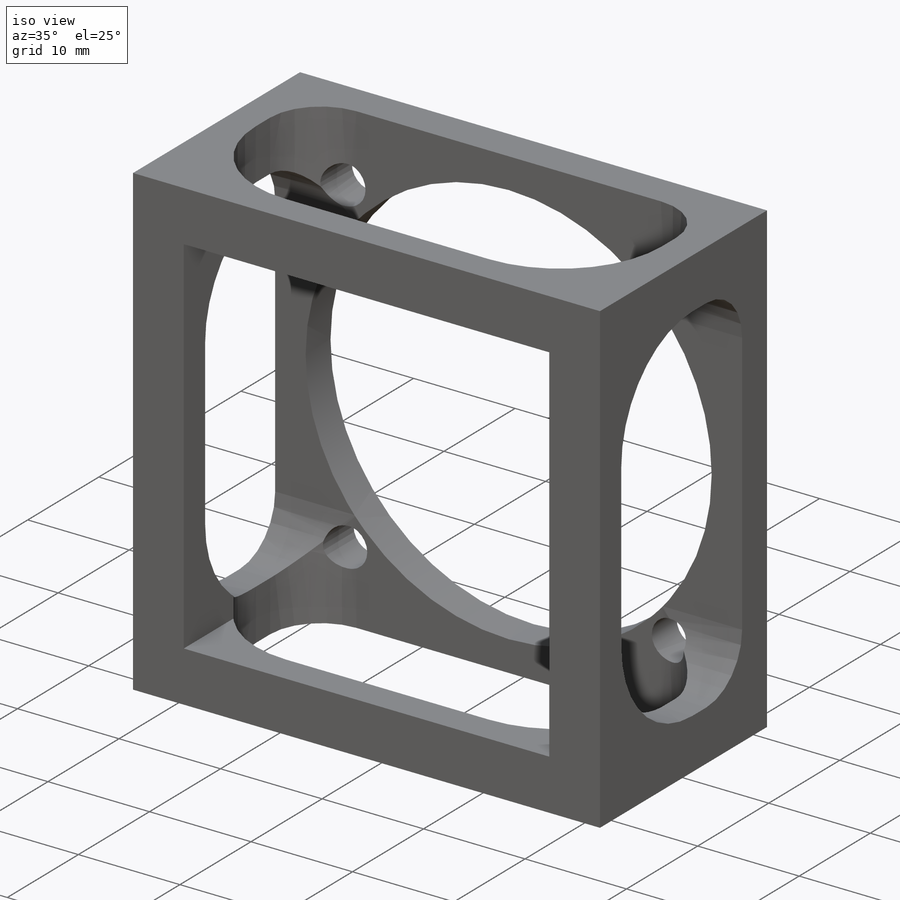
[diagram: iso view]
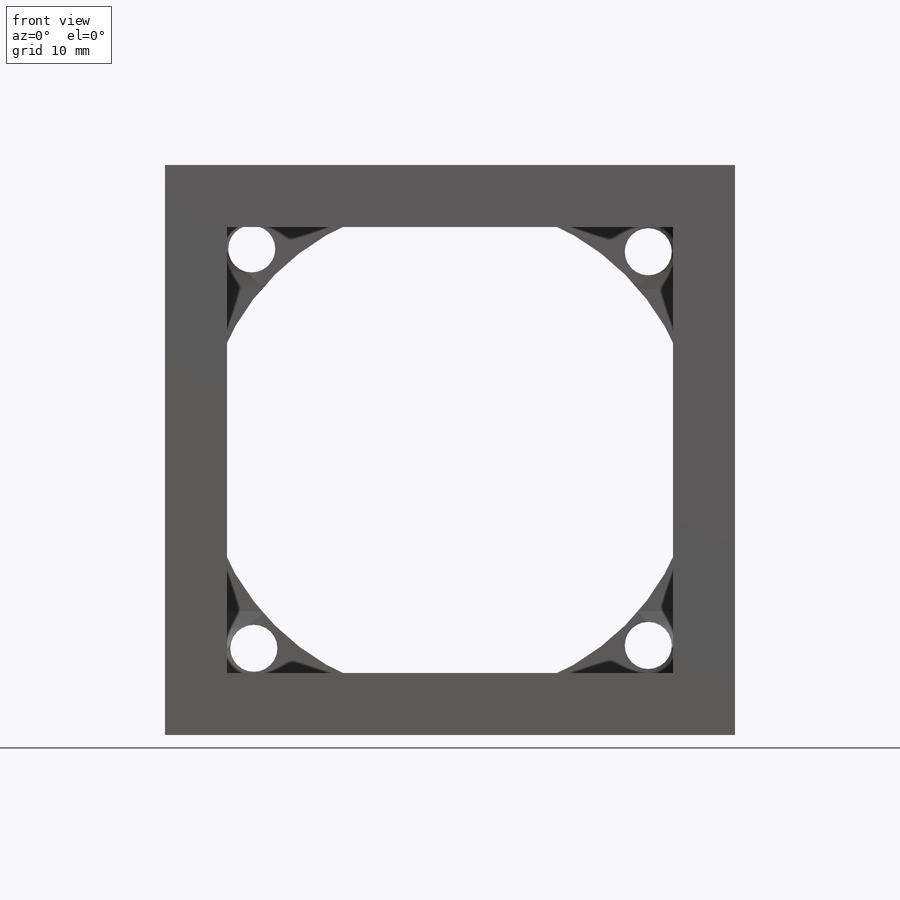
[diagram: front view]
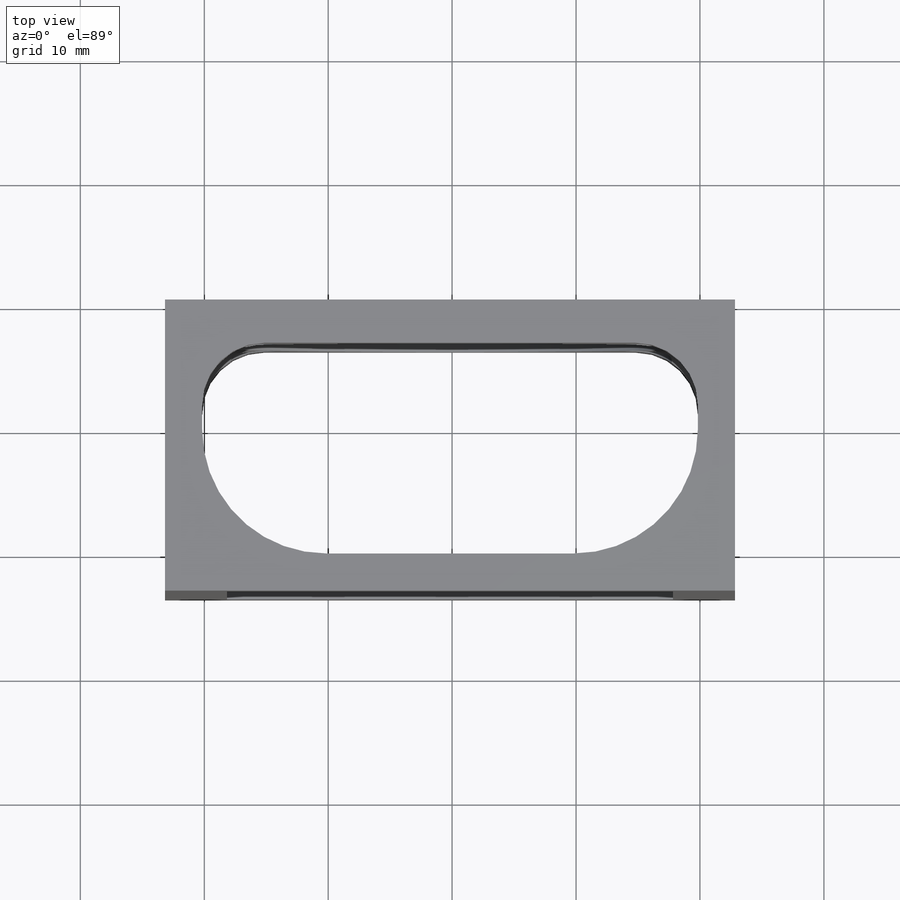
[diagram: top view]
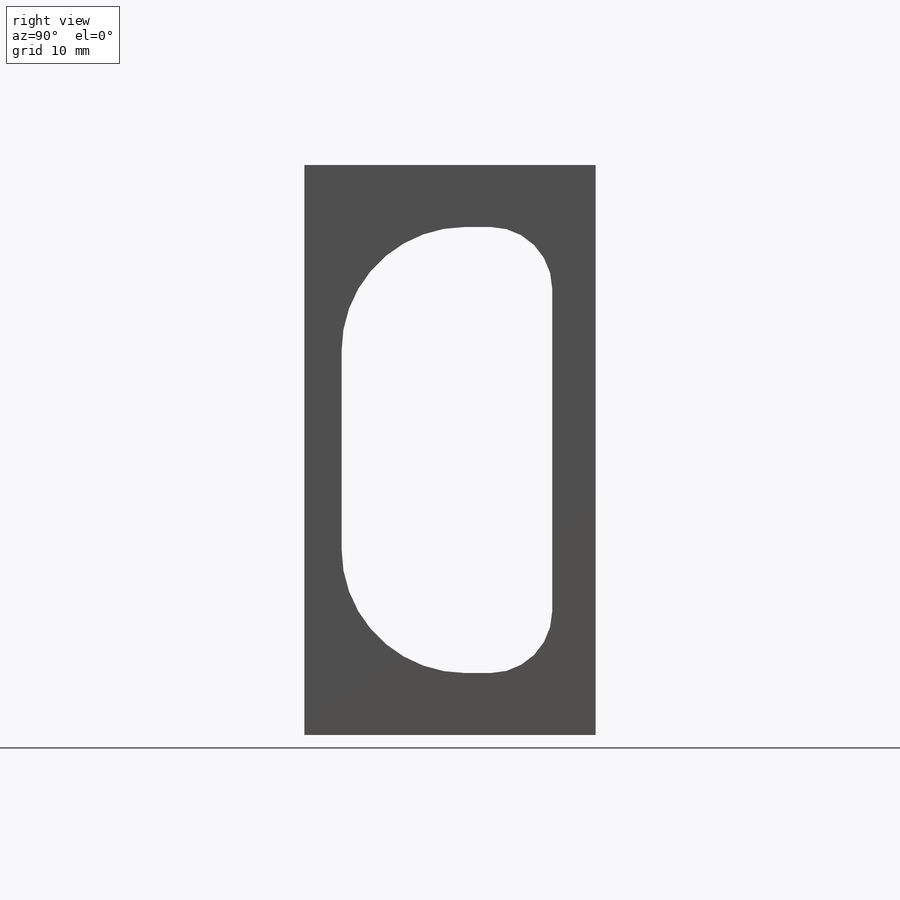
[diagram: right view]
SOLIDWORKS PART (.sldprt)
format: sldprt  version: not decoded by parser v0  size: 295,936 bytes
history: native  units: mm
features: sketch x5, plane x4, cut_extrude x3, extrude x2, fillet x2, material x1 (+13 scaffold rows collapsed)
feature tree (30):
  scaffold x13  (default folders/planes/origin — collapsed)
  material  "Material <not specified>"
  sketch  "Sketch1"  dims[c1.D7=40.0mm c1.D1=40.0mm c1.D2=40.0mm c1.D3=4.0mm c1.D4=4.0mm c1.D5=4.0mm c1.D6=4.0mm c2.D1=20.0mm c2.D2=40.0mm c2.D8=46.0mm c2.D9=46.0mm c2.D10=23.0mm c2.D11=3.0mm c2.D12=~2.770658mm c2.D7=23.0mm]
  extrude  "Boss-Extrude1"  Depth=3.5mm
  plane  "Plane1"  Offset=0mm
  sketch  "Sketch3"  dims[D1=46.0mm]
  extrude  "Boss-Extrude2"  Depth=20mm
  plane  "Plane2"  Offset=0mm
  sketch  "Sketch4"  dims[D1=3.0mm D2=3.0mm D3=3.0mm D4=3.5mm]
  cut_extrude  "Cut-Extrude1"  [1 undecoded]
  plane  "Plane3"  Offset=0mm
  sketch  "Sketch5"  dims[D1=3.5mm D2=3.0mm D3=5.0mm D4=5.0mm]
  cut_extrude  "Cut-Extrude2"  [1 undecoded]
  plane  "Plane4"  Offset=0mm
  sketch  "Sketch6"  dims[D1=5.0mm D2=5.0mm D3=5.0mm D4=5.0mm]
  cut_extrude  "Cut-Extrude3"  [1 undecoded]
  fillet  "Fillet1"  Radius=10mm
  fillet  "Fillet2"  Radius=5mm
decode coverage: 9 of 12 modeling features carry decoded parameters
note: ~ marks probable driven/reference dimensions
note: 3 parameter values undecoded
summary: no parameter record found for 3 features
note: suppression state not decoded; provenance and decode notes live in map.json
